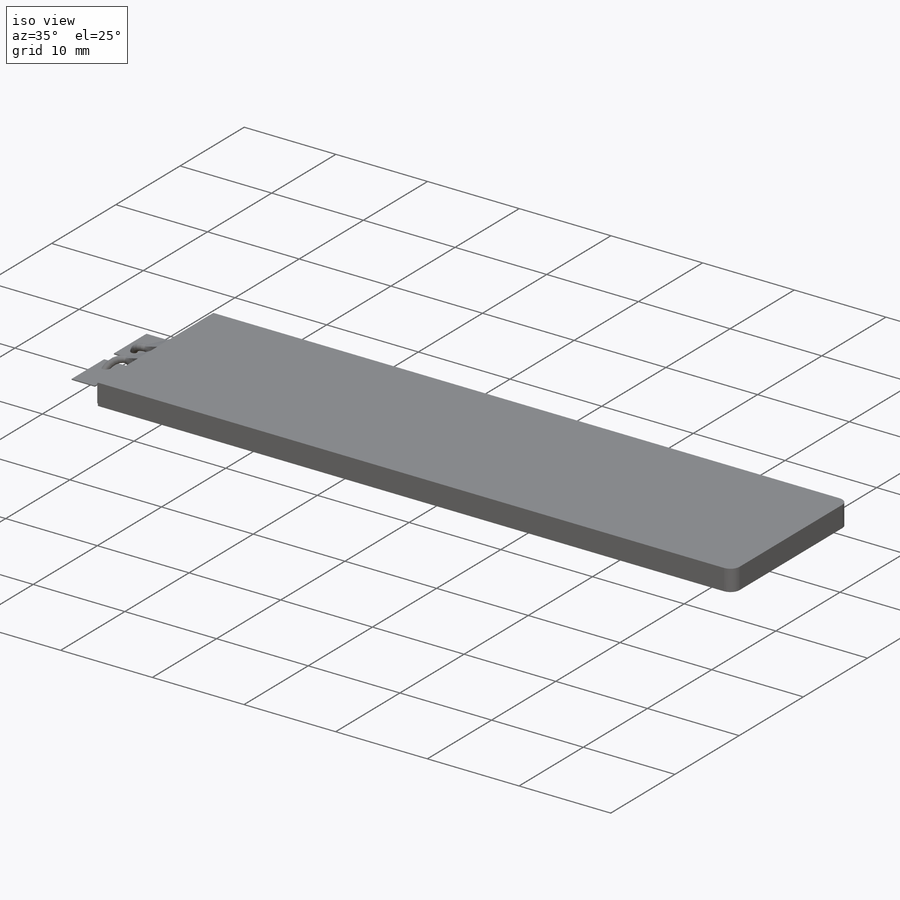
[diagram: iso view]
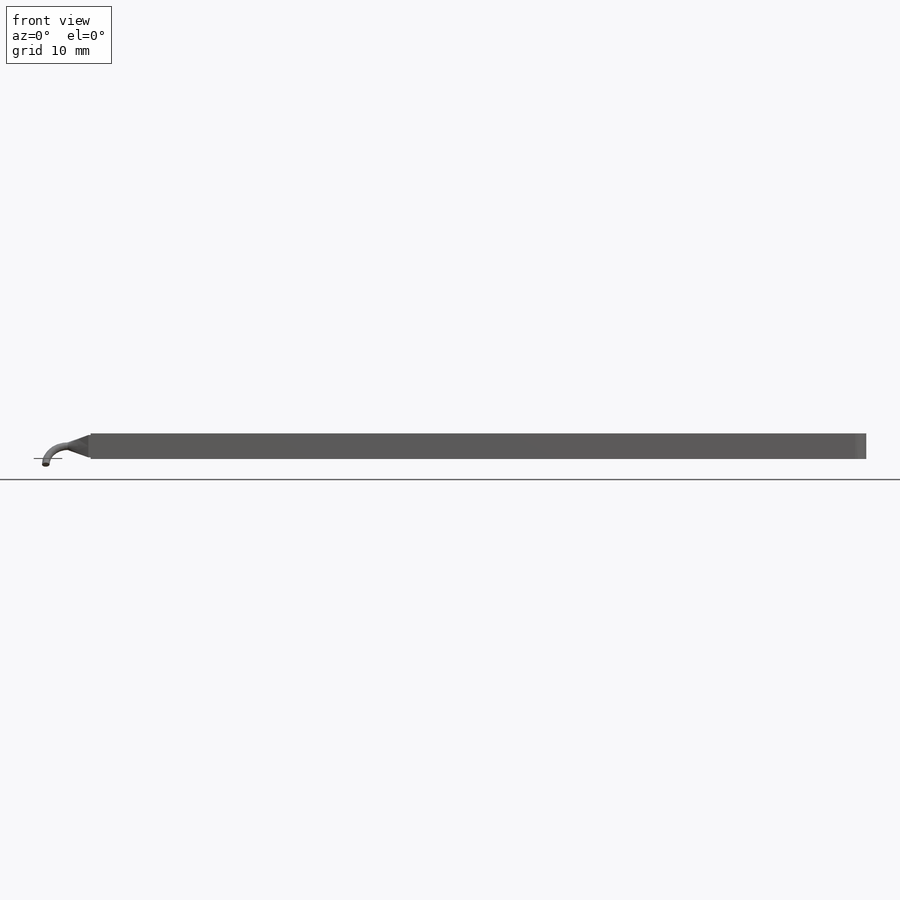
[diagram: front view]
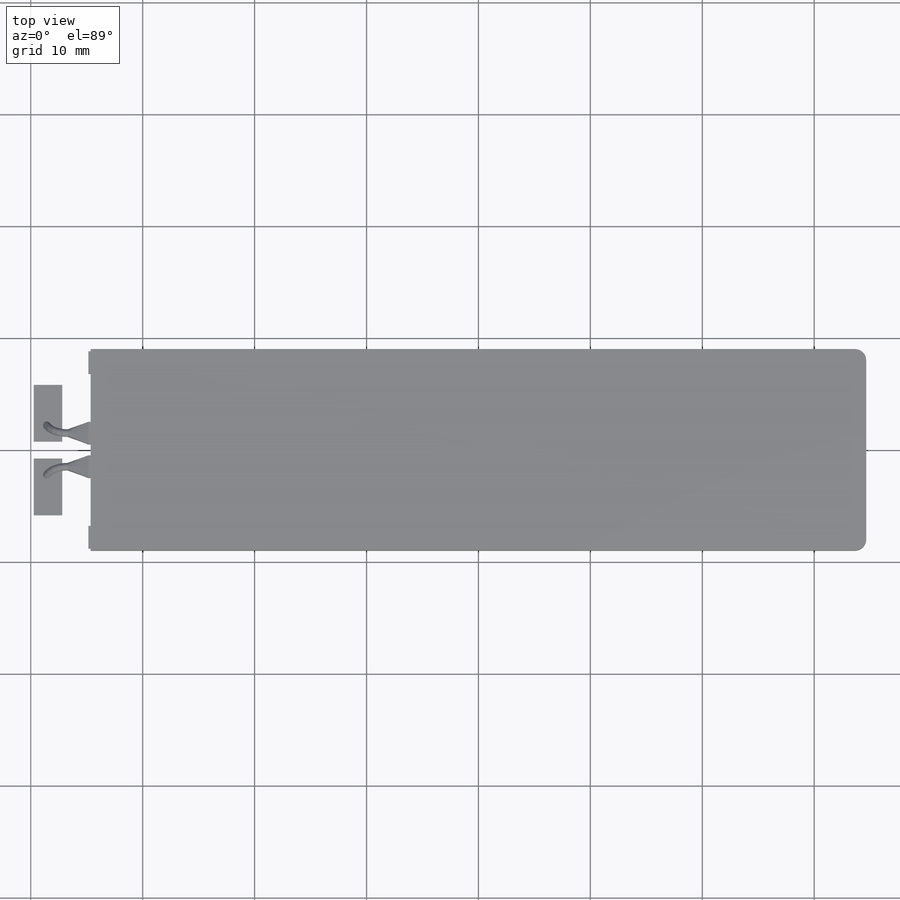
[diagram: top view]
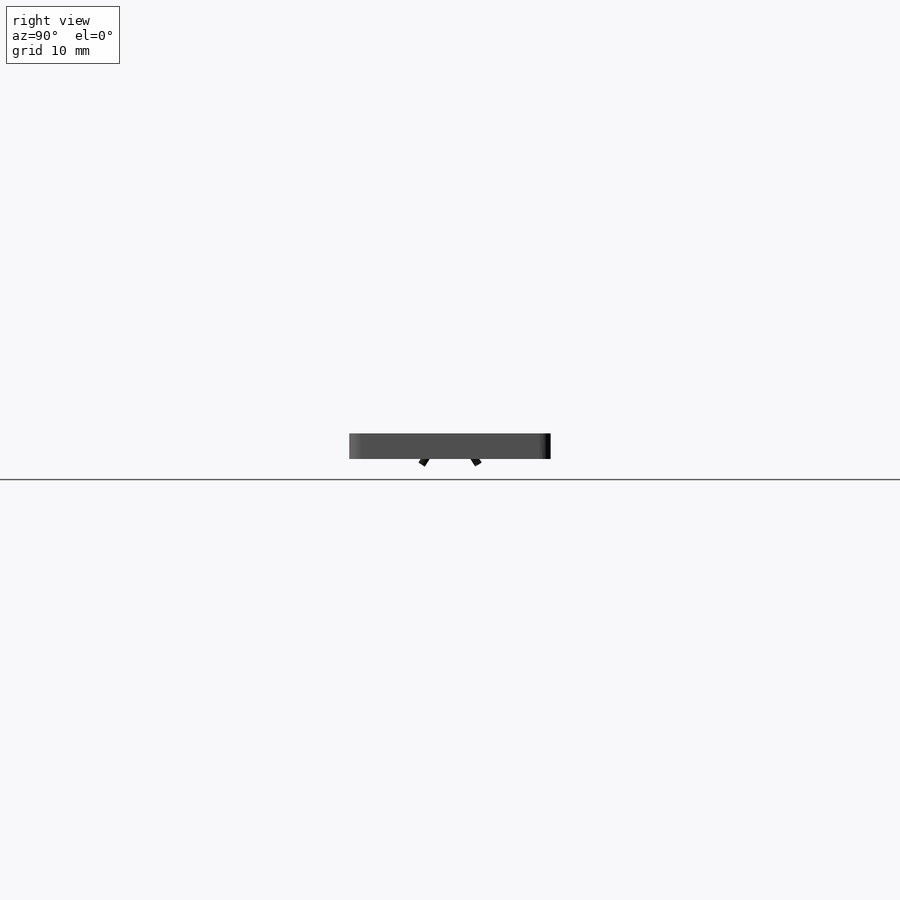
[diagram: right view]
SOLIDWORKS PART (.sldprt)
format: sldprt  version: not decoded by parser v0  size: 296,448 bytes
history: native  units: mm
features: sketch x8, extrude x3, material x1, plane x1, sweep x1, mirror x1 (+11 scaffold rows collapsed)
feature tree (26):
  scaffold x11  (default folders/planes/origin — collapsed)
  material  "Material <not specified>"
  sketch  "Sketch1"  dims[D5=1.0mm D1=69.3mm D2=34.65mm D3=18.0mm D4=9.0mm]
  extrude  "Boss-Extrude1"  Depth=2.3mm
  sketch  "Sketch2"  dims[D1=2.0mm D2=1.0mm D3=0.5mm D4=8.8mm D5=0.15mm D6=8.8mm]
  extrude  "Boss-Extrude2"  Depth=0.2mm
  sketch  "Sketch3"
  sketch  "3DSketch3"  dims[c1.D2=~1.66175mm c1.D4=0.68mm c1.D1=2.54mm c2.D2=0.5mm c2.D3=~2.401732mm c2.D5=2.54mm c2.D4=1.15mm c3.D3=3.81mm]
  sketch  "Sketch4"
  plane  "Plane2"
  sketch  "Sketch5"
  sketch  "Sketch6"
  sweep  "Sweep2"
  mirror  "Mirror4"
  sketch  "Sketch7"  dims[D1=5.08mm D2=2.54mm D3=1.5mm D4=0.75mm D5=2.54mm D6=5.08mm]
  extrude  "Boss-Extrude3"  Depth=0.1mm
decode coverage: 7 of 13 modeling features carry decoded parameters
note: ~ marks probable driven/reference dimensions
note: suppression state not decoded; provenance and decode notes live in map.json
